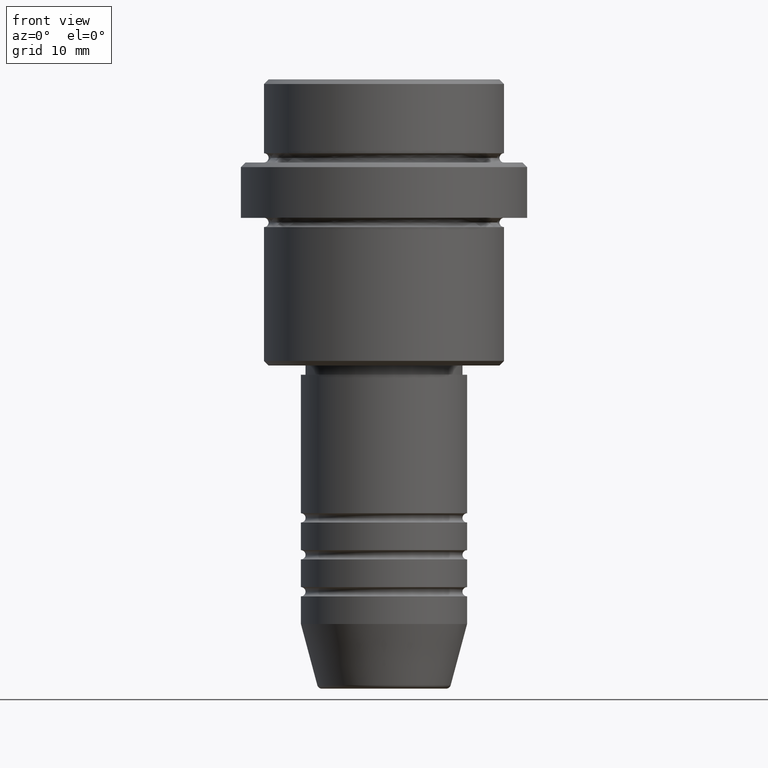
[diagram: clean part render]
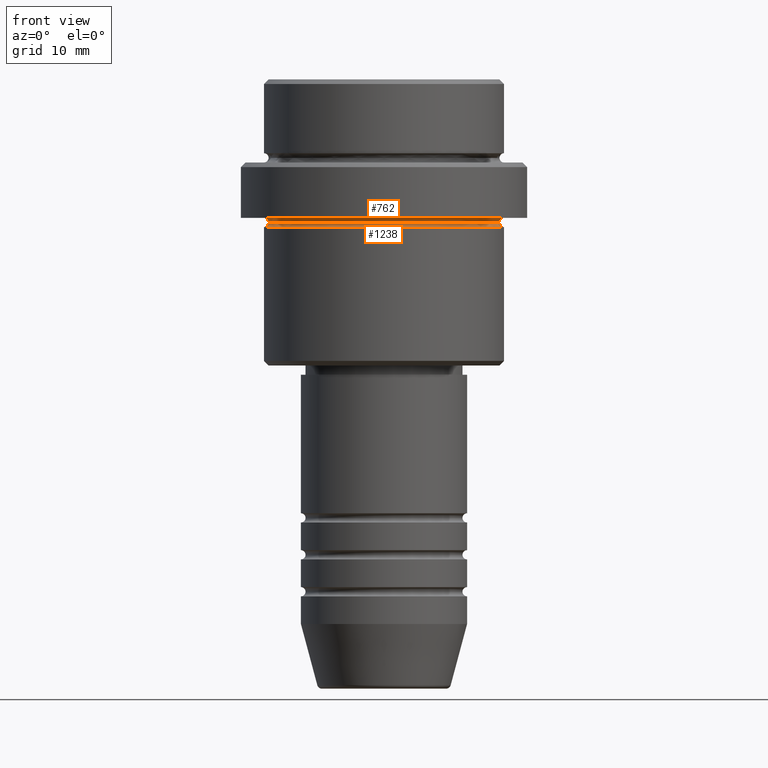
[diagram: same view with one multi-face feature highlighted, each face labeled with its STEP entity id]
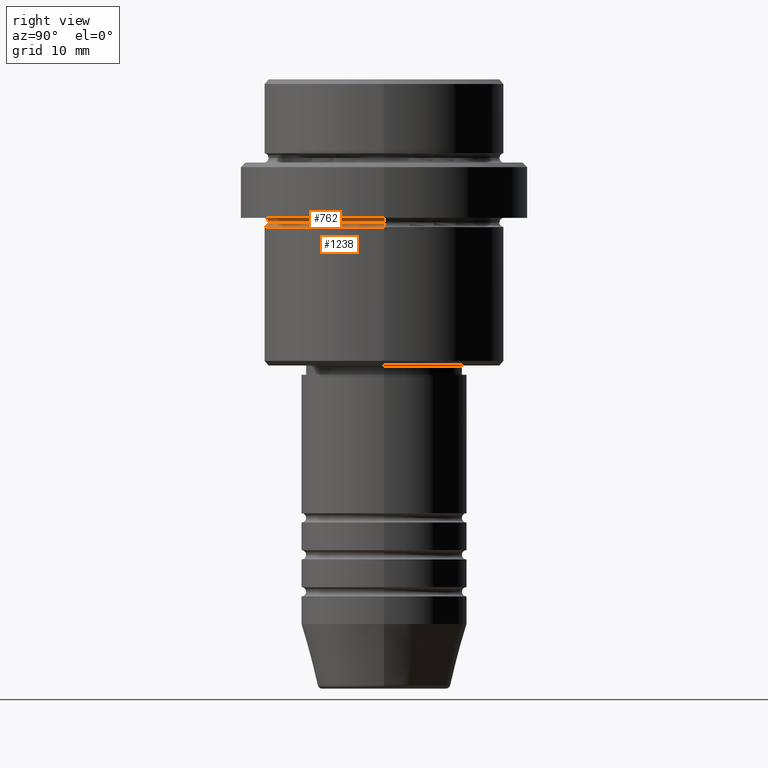
[diagram: same view with one multi-face feature highlighted, each face labeled with its STEP entity id]
A machine part, front view. The highlighted faces form ONE feature: a constant-radius fillet chain: 2 tangent blend faces with common blend radius 0.5 mm. The faces share edges in the B-rep.
A second angle (right view) of the same feature is appended — it is thin or edge-on in the first view.
Their STEP definitions:
[1] entity #762 (Torus):
#50 = CARTESIAN_POINT ( 'NONE',  ( -12.49999999999999467, 0.000000000000000000, -15.50000000000000000 ) ) ;
#57 = CIRCLE ( 'NONE', #1066, 12.99999999999999645 ) ;
#86 = AXIS2_PLACEMENT_3D ( 'NONE', #1367, #391, #716 ) ;
#146 = DIRECTION ( 'NONE',  ( -0.000000000000000000, -0.000000000000000000, 1.000000000000000000 ) ) ;
#158 = AXIS2_PLACEMENT_3D ( 'NONE', #341, #1216, #777 ) ;
#231 = CARTESIAN_POINT ( 'NONE',  ( -12.99999999999999645, 0.000000000000000000, -15.00000000000000000 ) ) ;
#252 = EDGE_LOOP ( 'NONE', ( #794, #1006, #593, #860 ) ) ;
#258 = EDGE_CURVE ( 'NONE', #1138, #419, #916, .T. ) ;
#281 = DIRECTION ( 'NONE',  ( 0.000000000000000000, 0.000000000000000000, -1.000000000000000000 ) ) ;
#327 = EDGE_CURVE ( 'NONE', #761, #549, #1074, .T. ) ;
#341 = CARTESIAN_POINT ( 'NONE',  ( 12.99999999999999645, 1.592040838891558701E-15, -15.50000000000000000 ) ) ;
#359 = EDGE_CURVE ( 'NONE', #1138, #761, #1322, .T. ) ;
#377 = FACE_OUTER_BOUND ( 'NONE', #252, .T. ) ;
#391 = DIRECTION ( 'NONE',  ( 0.000000000000000000, 0.000000000000000000, -1.000000000000000000 ) ) ;
#418 = DIRECTION ( 'NONE',  ( -0.000000000000000000, -1.000000000000000000, -0.000000000000000000 ) ) ;
#419 = VERTEX_POINT ( 'NONE', #873 ) ;
#491 = CARTESIAN_POINT ( 'NONE',  ( 0.000000000000000000, 0.000000000000000000, -15.50000000000000000 ) ) ;
#493 = TOROIDAL_SURFACE ( 'NONE', #1157, 12.99999999999999645, 0.5000000000000000000 ) ;
#549 = VERTEX_POINT ( 'NONE', #231 ) ;
#593 = ORIENTED_EDGE ( 'NONE', *, *, #713, .F. ) ;
#713 = EDGE_CURVE ( 'NONE', #549, #419, #57, .T. ) ;
#716 = DIRECTION ( 'NONE',  ( -1.000000000000000000, 0.000000000000000000, 0.000000000000000000 ) ) ;
#741 = CARTESIAN_POINT ( 'NONE',  ( -12.99999999999999645, 0.000000000000000000, -15.50000000000000000 ) ) ;
#761 = VERTEX_POINT ( 'NONE', #50 ) ;
#762 = ADVANCED_FACE ( 'NONE', ( #377 ), #493, .F. ) ;
#774 = AXIS2_PLACEMENT_3D ( 'NONE', #741, #418, #281 ) ;
#777 = DIRECTION ( 'NONE',  ( -1.000000000000000000, -1.224646799147353454E-16, 0.000000000000000000 ) ) ;
#794 = ORIENTED_EDGE ( 'NONE', *, *, #359, .F. ) ;
#860 = ORIENTED_EDGE ( 'NONE', *, *, #327, .F. ) ;
#873 = CARTESIAN_POINT ( 'NONE',  ( 12.99999999999999645, 1.592040838891558701E-15, -15.00000000000000000 ) ) ;
#916 = CIRCLE ( 'NONE', #158, 0.5000000000000004441 ) ;
#926 = DIRECTION ( 'NONE',  ( 0.000000000000000000, 0.000000000000000000, -1.000000000000000000 ) ) ;
#1006 = ORIENTED_EDGE ( 'NONE', *, *, #258, .T. ) ;
#1066 = AXIS2_PLACEMENT_3D ( 'NONE', #1242, #146, #1348 ) ;
#1071 = CARTESIAN_POINT ( 'NONE',  ( 12.49999999999999467, 1.561424668912874914E-15, -15.50000000000000000 ) ) ;
#1074 = CIRCLE ( 'NONE', #774, 0.5000000000000004441 ) ;
#1138 = VERTEX_POINT ( 'NONE', #1071 ) ;
#1157 = AXIS2_PLACEMENT_3D ( 'NONE', #491, #926, #1361 ) ;
#1216 = DIRECTION ( 'NONE',  ( -1.224646799147353207E-16, 1.000000000000000000, 0.000000000000000000 ) ) ;
#1242 = CARTESIAN_POINT ( 'NONE',  ( 0.000000000000000000, 0.000000000000000000, -15.00000000000000000 ) ) ;
#1322 = CIRCLE ( 'NONE', #86, 12.49999999999999467 ) ;
#1348 = DIRECTION ( 'NONE',  ( -1.000000000000000000, 0.000000000000000000, 0.000000000000000000 ) ) ;
#1361 = DIRECTION ( 'NONE',  ( -1.000000000000000000, 0.000000000000000000, 0.000000000000000000 ) ) ;
#1367 = CARTESIAN_POINT ( 'NONE',  ( 0.000000000000000000, 0.000000000000000000, -15.50000000000000000 ) ) ;
[2] entity #1238 (Torus):
#50 = CARTESIAN_POINT ( 'NONE',  ( -12.49999999999999467, 0.000000000000000000, -15.50000000000000000 ) ) ;
#81 = DIRECTION ( 'NONE',  ( -0.000000000000000000, -0.000000000000000000, 1.000000000000000000 ) ) ;
#86 = AXIS2_PLACEMENT_3D ( 'NONE', #1367, #391, #716 ) ;
#173 = VERTEX_POINT ( 'NONE', #1305 ) ;
#192 = DIRECTION ( 'NONE',  ( 0.000000000000000000, 0.000000000000000000, -1.000000000000000000 ) ) ;
#312 = DIRECTION ( 'NONE',  ( -0.000000000000000000, -1.000000000000000000, -0.000000000000000000 ) ) ;
#348 = EDGE_CURVE ( 'NONE', #173, #1138, #1137, .T. ) ;
#359 = EDGE_CURVE ( 'NONE', #1138, #761, #1322, .T. ) ;
#391 = DIRECTION ( 'NONE',  ( 0.000000000000000000, 0.000000000000000000, -1.000000000000000000 ) ) ;
#400 = CIRCLE ( 'NONE', #1263, 0.5000000000000004441 ) ;
#432 = TOROIDAL_SURFACE ( 'NONE', #850, 12.99999999999999645, 0.5000000000000000000 ) ;
#469 = DIRECTION ( 'NONE',  ( 0.000000000000000000, 0.000000000000000000, -1.000000000000000000 ) ) ;
#483 = DIRECTION ( 'NONE',  ( -1.000000000000000000, 0.000000000000000000, 0.000000000000000000 ) ) ;
#489 = CIRCLE ( 'NONE', #1243, 13.00000000000000000 ) ;
#500 = CARTESIAN_POINT ( 'NONE',  ( 12.99999999999999645, 1.592040838891558701E-15, -15.50000000000000000 ) ) ;
#519 = DIRECTION ( 'NONE',  ( 1.000000000000000000, 0.000000000000000000, 0.000000000000000000 ) ) ;
#521 = AXIS2_PLACEMENT_3D ( 'NONE', #500, #853, #1044 ) ;
#568 = ORIENTED_EDGE ( 'NONE', *, *, #955, .T. ) ;
#580 = ORIENTED_EDGE ( 'NONE', *, *, #359, .T. ) ;
#635 = CARTESIAN_POINT ( 'NONE',  ( 0.000000000000000000, 0.000000000000000000, -16.00000000000000000 ) ) ;
#696 = CARTESIAN_POINT ( 'NONE',  ( 0.000000000000000000, 0.000000000000000000, -15.50000000000000000 ) ) ;
#716 = DIRECTION ( 'NONE',  ( -1.000000000000000000, 0.000000000000000000, 0.000000000000000000 ) ) ;
#730 = CARTESIAN_POINT ( 'NONE',  ( -13.00000000000000000, 1.592040838891559095E-15, -16.00000000000000000 ) ) ;
#736 = CARTESIAN_POINT ( 'NONE',  ( -12.99999999999999645, 0.000000000000000000, -15.50000000000000000 ) ) ;
#761 = VERTEX_POINT ( 'NONE', #50 ) ;
#850 = AXIS2_PLACEMENT_3D ( 'NONE', #696, #469, #483 ) ;
#853 = DIRECTION ( 'NONE',  ( -1.224646799147353207E-16, 1.000000000000000000, 0.000000000000000000 ) ) ;
#918 = ORIENTED_EDGE ( 'NONE', *, *, #1117, .F. ) ;
#930 = EDGE_LOOP ( 'NONE', ( #568, #1013, #580, #918 ) ) ;
#955 = EDGE_CURVE ( 'NONE', #1371, #173, #489, .T. ) ;
#1001 = FACE_OUTER_BOUND ( 'NONE', #930, .T. ) ;
#1013 = ORIENTED_EDGE ( 'NONE', *, *, #348, .T. ) ;
#1044 = DIRECTION ( 'NONE',  ( -1.000000000000000000, -1.224646799147353454E-16, 0.000000000000000000 ) ) ;
#1071 = CARTESIAN_POINT ( 'NONE',  ( 12.49999999999999467, 1.561424668912874914E-15, -15.50000000000000000 ) ) ;
#1117 = EDGE_CURVE ( 'NONE', #1371, #761, #400, .T. ) ;
#1137 = CIRCLE ( 'NONE', #521, 0.5000000000000004441 ) ;
#1138 = VERTEX_POINT ( 'NONE', #1071 ) ;
#1238 = ADVANCED_FACE ( 'NONE', ( #1001 ), #432, .F. ) ;
#1243 = AXIS2_PLACEMENT_3D ( 'NONE', #635, #81, #519 ) ;
#1263 = AXIS2_PLACEMENT_3D ( 'NONE', #736, #312, #192 ) ;
#1305 = CARTESIAN_POINT ( 'NONE',  ( 13.00000000000000000, 0.000000000000000000, -16.00000000000000000 ) ) ;
#1322 = CIRCLE ( 'NONE', #86, 12.49999999999999467 ) ;
#1367 = CARTESIAN_POINT ( 'NONE',  ( 0.000000000000000000, 0.000000000000000000, -15.50000000000000000 ) ) ;
#1371 = VERTEX_POINT ( 'NONE', #730 ) ;